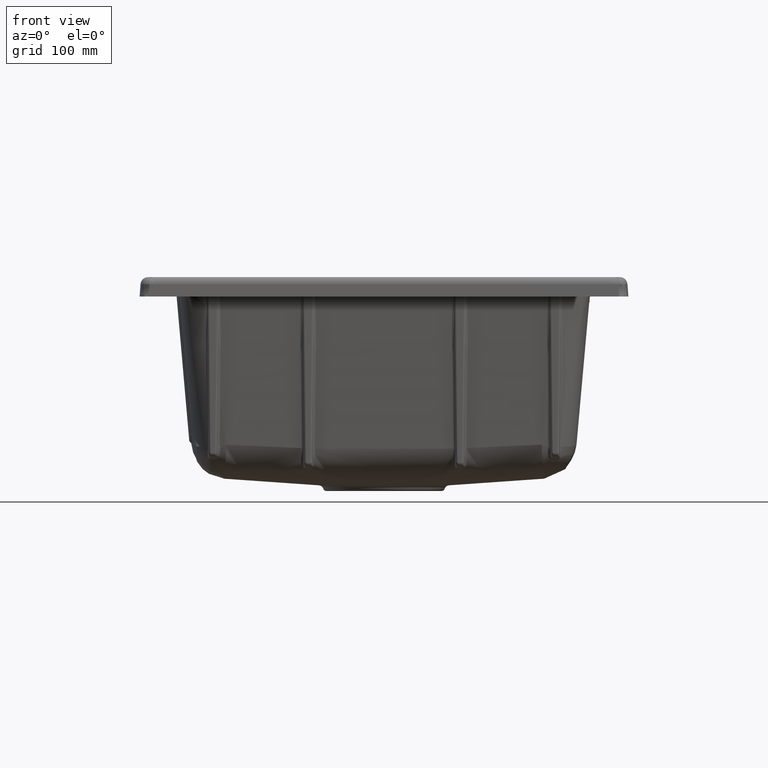
[diagram: clean part render]
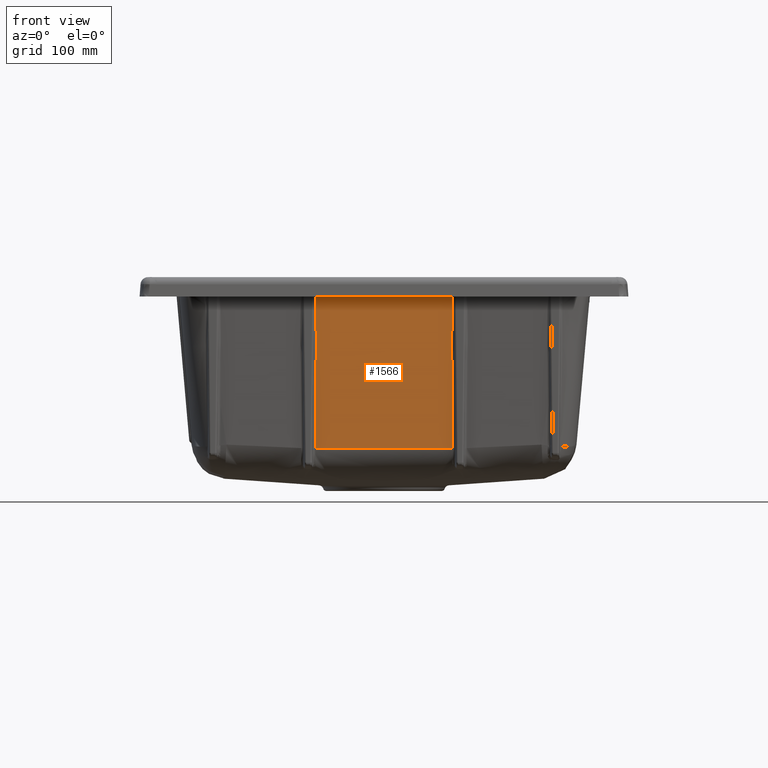
[diagram: same view with one face highlighted and labeled with its STEP entity id]
A machine part, front view. The second image highlights one B-rep face of the part: STEP entity #1566.
In plain terms, the highlighted planar face has unit normal (0, -0.9962, -0.0872).
Its self-contained STEP definition (entity closure, byte-faithful):
#56=ELLIPSE('',#5067,95.5430645011495,5.);
#57=ELLIPSE('',#5068,95.5430645011494,5.);
#167=PLANE('',#5069);
#190=LINE('',#8067,#315);
#277=LINE('',#11640,#402);
#278=LINE('',#11645,#403);
#315=VECTOR('',#5242,1.);
#402=VECTOR('',#5663,1.);
#403=VECTOR('',#5668,1.);
#827=FACE_OUTER_BOUND('',#1919,.T.);
#1222=B_SPLINE_CURVE_WITH_KNOTS('',3,(#12404,#12405,#12406,#12407,#12408,
#12409),.UNSPECIFIED.,.F.,.F.,(4,2,4),(0.,0.5,1.),.UNSPECIFIED.);
#1566=ADVANCED_FACE('',(#827),#167,.T.);
#1919=EDGE_LOOP('',(#3140,#3141,#3142,#3143,#3144,#3145));
#3140=ORIENTED_EDGE('',*,*,#4582,.T.);
#3141=ORIENTED_EDGE('',*,*,#4066,.T.);
#3142=ORIENTED_EDGE('',*,*,#4583,.T.);
#3143=ORIENTED_EDGE('',*,*,#4505,.T.);
#3144=ORIENTED_EDGE('',*,*,#4569,.F.);
#3145=ORIENTED_EDGE('',*,*,#4503,.T.);
#3560=VERTEX_POINT('',#8066);
#3561=VERTEX_POINT('',#8068);
#3862=VERTEX_POINT('',#11637);
#3863=VERTEX_POINT('',#11639);
#3864=VERTEX_POINT('',#11643);
#3866=VERTEX_POINT('',#11646);
#4066=EDGE_CURVE('',#3561,#3560,#190,.T.);
#4503=EDGE_CURVE('',#3862,#3863,#277,.T.);
#4505=EDGE_CURVE('',#3866,#3864,#278,.T.);
#4569=EDGE_CURVE('',#3862,#3864,#1222,.T.);
#4582=EDGE_CURVE('',#3863,#3561,#56,.T.);
#4583=EDGE_CURVE('',#3560,#3866,#57,.T.);
#5067=AXIS2_PLACEMENT_3D('',#12545,#5757,#5758);
#5068=AXIS2_PLACEMENT_3D('',#12546,#5759,#5760);
#5069=AXIS2_PLACEMENT_3D('',#12547,#5761,#5762);
#5242=DIRECTION('',(-1.,0.,0.));
#5663=DIRECTION('',(-0.00975510050894774,-0.0871515956922123,0.996147297031098));
#5668=DIRECTION('',(-0.00975510050894773,0.0871515956922123,-0.996147297031098));
#5757=DIRECTION('',(2.16840434497101E-19,0.996194698091746,0.0871557427476581));
#5758=DIRECTION('',(0.0116367692026273,0.0871498414766767,-0.996127246255776));
#5759=DIRECTION('',(0.,0.996194698091746,0.0871557427476581));
#5760=DIRECTION('',(-0.0116367692026273,0.0871498414766767,-0.996127246255776));
#5761=DIRECTION('',(0.,-0.996194698091746,-0.0871557427476581));
#5762=DIRECTION('',(0.,-0.0871557427476581,0.996194698091746));
#8066=CARTESIAN_POINT('',(-70.6267100417303,97.6088292347063,-20.0002990245197));
#8067=CARTESIAN_POINT('',(248.5,97.6088068813857,-20.));
#8068=CARTESIAN_POINT('',(70.6267100479053,97.6088292363726,-20.000299025594));
#11637=CARTESIAN_POINT('',(70.6833547499276,111.291189761423,-176.390351930106));
#11639=CARTESIAN_POINT('',(69.8025129275413,103.421791561394,-86.4427189276431));
#11640=CARTESIAN_POINT('',(69.2641013376626,98.6116484824914,-31.4625319520234));
#11643=CARTESIAN_POINT('',(-70.6833547499276,111.291189761494,-176.3903519301));
#11645=CARTESIAN_POINT('',(-68.9475241666227,95.7833633622571,0.864914899375937));
#11646=CARTESIAN_POINT('',(-69.8025129275412,103.421791561394,-86.4427189276434));
#12404=CARTESIAN_POINT('',(70.6833547499276,111.29118976011,-176.390351930221));
#12405=CARTESIAN_POINT('',(47.1375773567989,111.356713970579,-177.139297082983));
#12406=CARTESIAN_POINT('',(23.5851795454931,111.395209090376,-177.579298315659));
#12407=CARTESIAN_POINT('',(-23.5384618984052,111.395257753357,-177.579854536077));
#12408=CARTESIAN_POINT('',(-47.1160600334599,111.356773849919,-177.139981506977));
#12409=CARTESIAN_POINT('',(-70.6833547499276,111.29118976011,-176.390351930221));
#12545=CARTESIAN_POINT('',(74.8388981925916,103.715938478153,-89.8048335709023));
#12546=CARTESIAN_POINT('',(-74.8388981925916,103.715938478153,-89.8048335709026));
#12547=CARTESIAN_POINT('',(248.5,96.0532742267156,-2.22018039846721));